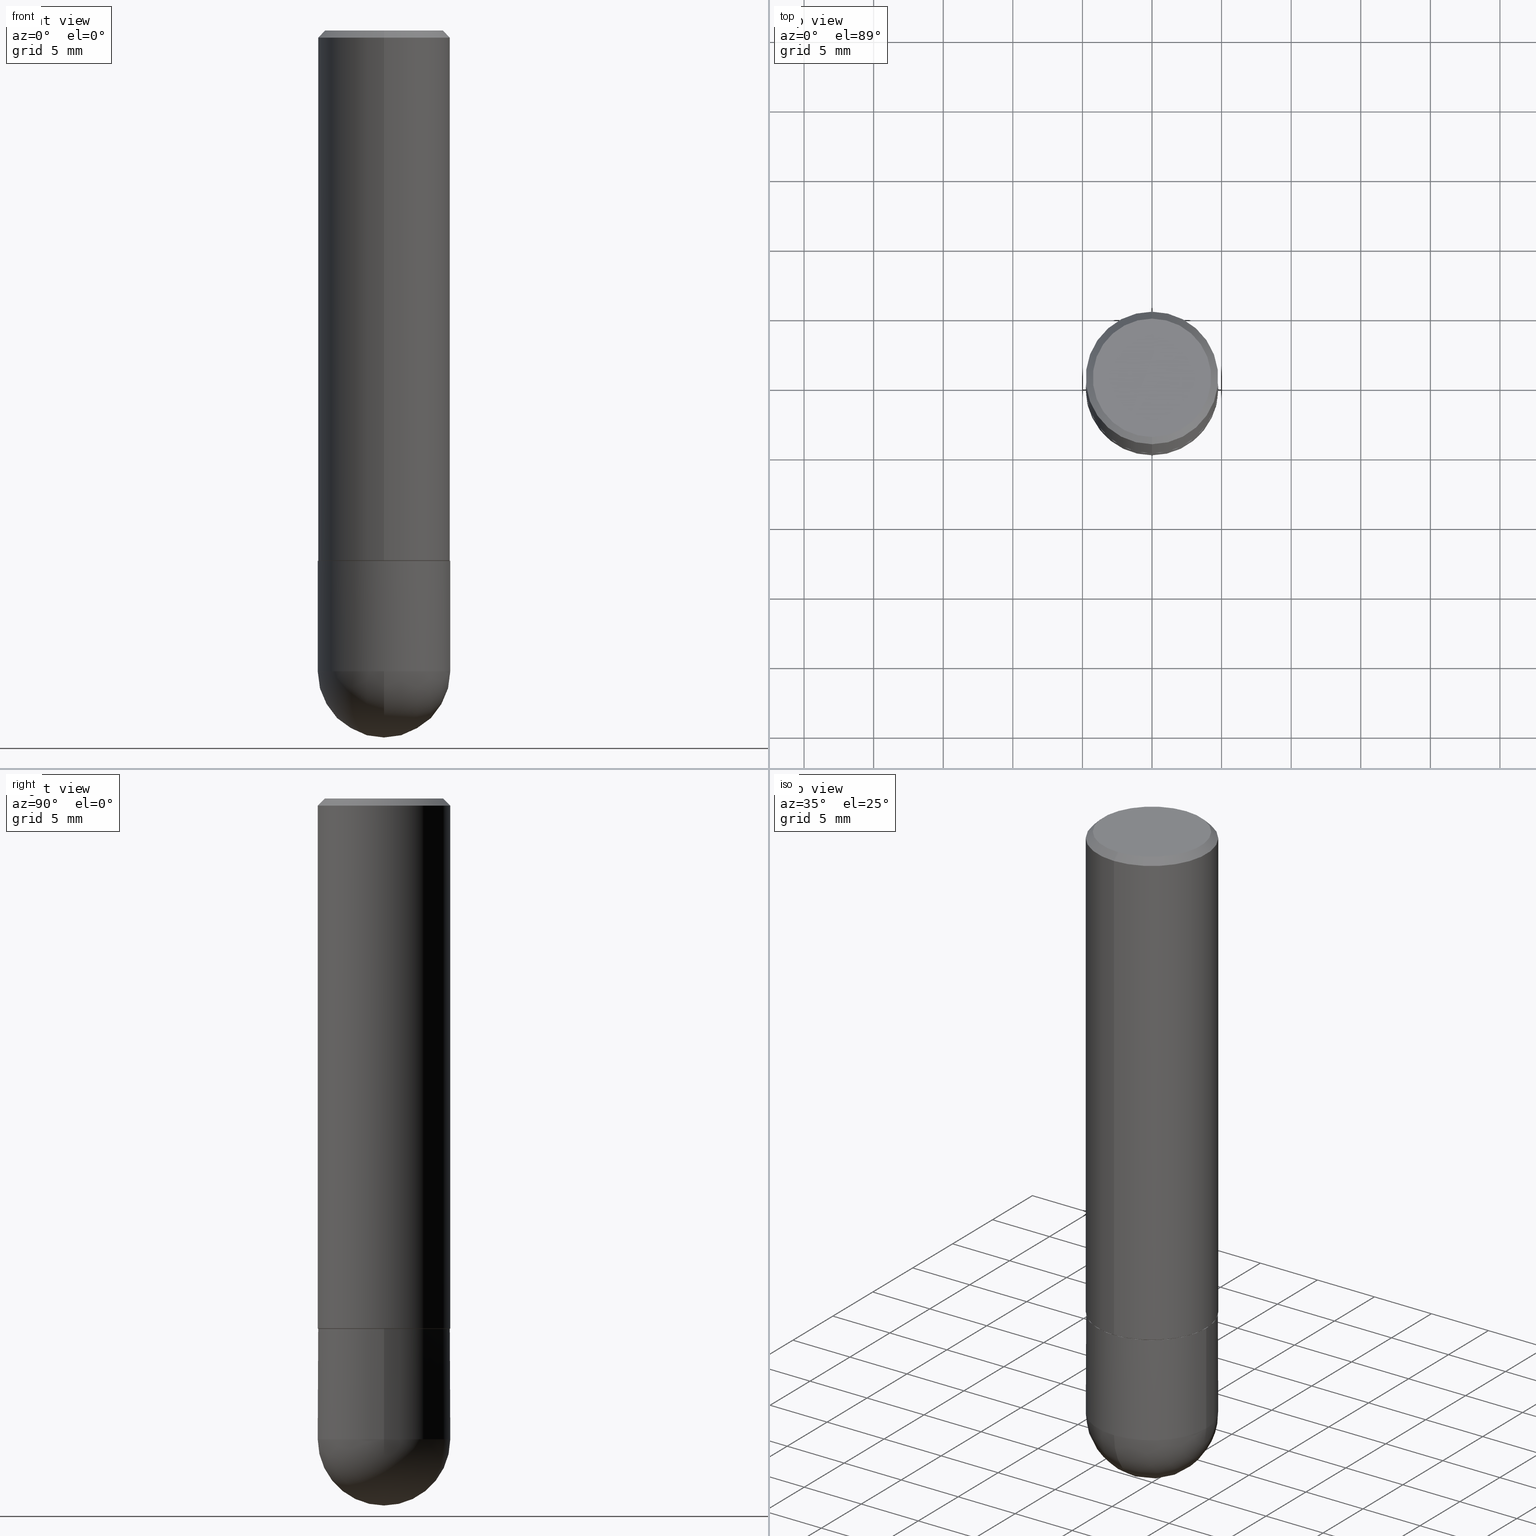
[diagram: canonical four-view strip — front | top / right | iso, engineering-drawing reading convention]
A machine part, canonical four-view strip (front | top / right | iso — engineering-drawing reading convention). The complete STEP part file that produces these views, byte-faithful:
ISO-10303-21;
HEADER;
FILE_DESCRIPTION (( 'STEP AP203' ),
    '1' );
FILE_NAME ('34975.STEP',
    '2024-02-21T18:36:08',
    ( '' ),
    ( '' ),
    'SwSTEP 2.0',
    'SolidWorks 2023',
    '' );
FILE_SCHEMA (( 'CONFIG_CONTROL_DESIGN' ));
ENDSEC;

DATA;
#1 = CARTESIAN_POINT ( 'NONE',  ( 3.666356659349451790E-29, -5.239866372861070262E-15, -1.499999999999999778 ) ) ;
#2 = MANIFOLD_SOLID_BREP ( 'Body-Move/Copy2[1]', #349 ) ;
#3 = APPROVAL_STATUS ( 'not_yet_approved' ) ;
#4 = AXIS2_PLACEMENT_3D ( 'NONE', #292, #264, #400 ) ;
#5 = ADVANCED_FACE ( 'NONE', ( #176 ), #185, .T. ) ;
#6 = COORDINATED_UNIVERSAL_TIME_OFFSET ( 5, 0, .BEHIND. ) ;
#7 = LINE ( 'NONE', #353, #118 ) ;
#8 = LINE ( 'NONE', #157, #295 ) ;
#9 = UNCERTAINTY_MEASURE_WITH_UNIT (LENGTH_MEASURE( 1.000000000000000082E-05 ), #74, 'distance_accuracy_value', 'NONE');
#10 = AXIS2_PLACEMENT_3D ( 'NONE', #207, #116, #376 ) ;
#11 = EDGE_CURVE ( 'NONE', #330, #111, #65, .T. ) ;
#12 = VERTEX_POINT ( 'NONE', #338 ) ;
#13 = EDGE_CURVE ( 'NONE', #411, #55, #158, .T. ) ;
#14 = PLANE ( 'NONE',  #303 ) ;
#15 = ORIENTED_EDGE ( 'NONE', *, *, #34, .T. ) ;
#16 = DIRECTION ( 'NONE',  ( 1.000000000000000000, -6.982962677686266711E-15, 4.876176775795935793E-29 ) ) ;
#17 = DIRECTION ( 'NONE',  ( -2.444237772899634714E-29, 3.493244248574047893E-15, 1.000000000000000000 ) ) ;
#18 = DIRECTION ( 'NONE',  ( 6.982962677686266711E-15, 1.000000000000000000, -3.483106191921935949E-15 ) ) ;
#19 = ADVANCED_FACE ( 'NONE', ( #301 ), #117, .T. ) ;
#20 = ORIENTED_EDGE ( 'NONE', *, *, #13, .F. ) ;
#21 = AXIS2_PLACEMENT_3D ( 'NONE', #63, #340, #275 ) ;
#22 = DIRECTION ( 'NONE',  ( -6.982962677686265922E-15, -1.000000000000000000, 3.493244248574047893E-15 ) ) ;
#23 = EDGE_LOOP ( 'NONE', ( #166, #234, #291, #27, #211 ) ) ;
#24 = APPROVAL_DATE_TIME ( #339, #231 ) ;
#25 = DIRECTION ( 'NONE',  ( -6.982962677686266711E-15, -1.000000000000000000, 3.493244248574047893E-15 ) ) ;
#26 = CYLINDRICAL_SURFACE ( 'NONE', #10, 0.1874999999999999722 ) ;
#27 = ORIENTED_EDGE ( 'NONE', *, *, #49, .F. ) ;
#28 = FACE_OUTER_BOUND ( 'NONE', #88, .T. ) ;
#29 = ADVANCED_FACE ( 'NONE', ( #78 ), #174, .T. ) ;
#30 = CARTESIAN_POINT ( 'NONE',  ( 4.432412211210560082E-29, -6.328309926653201295E-15, -1.812499999999999778 ) ) ;
#31 = LOCAL_TIME ( 13, 36, 8.000000000000000000, #306 ) ;
#32 = ORIENTED_EDGE ( 'NONE', *, *, #108, .F. ) ;
#33 = PERSON_AND_ORGANIZATION_ROLE ( 'design_owner' ) ;
#34 = EDGE_CURVE ( 'NONE', #236, #77, #199, .T. ) ;
#35 = VECTOR ( 'NONE', #142, 39.37007874015748143 ) ;
#36 = CC_DESIGN_PERSON_AND_ORGANIZATION_ASSIGNMENT ( #302, #33, ( #372 ) ) ;
#37 = CARTESIAN_POINT ( 'NONE',  ( 4.888475545799278045E-31, -6.986488497148108654E-17, -0.02000000000000003858 ) ) ;
#38 = AXIS2_PLACEMENT_3D ( 'NONE', #364, #369, #16 ) ;
#39 = APPROVAL_PERSON_ORGANIZATION ( #124, #289, #127 ) ;
#40 = LINE ( 'NONE', #356, #311 ) ;
#41 = EDGE_LOOP ( 'NONE', ( #297, #333, #328, #121, #20 ) ) ;
#42 = DIRECTION ( 'NONE',  ( -2.444237772899634714E-29, 3.493244248574047893E-15, 1.000000000000000000 ) ) ;
#43 = CARTESIAN_POINT ( 'NONE',  ( -1.286343374582161379E-15, -0.1875000000000000555, -0.01999999999999938632 ) ) ;
#44 = DIRECTION ( 'NONE',  ( -2.444237772899634714E-29, 3.493244248574047893E-15, 1.000000000000000000 ) ) ;
#45 = EDGE_LOOP ( 'NONE', ( #260, #106, #320, #393 ) ) ;
#46 = DIRECTION ( 'NONE',  ( 2.444237772899634714E-29, -3.493244248574047893E-15, -1.000000000000000000 ) ) ;
#47 = CIRCLE ( 'NONE', #89, 0.1875000000000001388 ) ;
#48 = CARTESIAN_POINT ( 'NONE',  ( 0.000000000000000000, 0.000000000000000000, 0.000000000000000000 ) ) ;
#49 = EDGE_CURVE ( 'NONE', #92, #55, #321, .T. ) ;
#50 = DIRECTION ( 'NONE',  ( 2.438088387897960049E-29, -3.491481338843145188E-15, -1.000000000000000000 ) ) ;
#51 = ADVANCED_BREP_SHAPE_REPRESENTATION ( '34975', ( #2, #133, #154 ), #160 ) ;
#52 = ORIENTED_EDGE ( 'NONE', *, *, #250, .T. ) ;
#53 = PERSON_AND_ORGANIZATION ( #287, #164 ) ;
#54 = DIRECTION ( 'NONE',  ( -6.982962677686265922E-15, -1.000000000000000000, 2.929595703661408456E-15 ) ) ;
#55 = VERTEX_POINT ( 'NONE', #261 ) ;
#56 = AXIS2_PLACEMENT_3D ( 'NONE', #186, #355, #188 ) ;
#57 = APPROVAL_PERSON_ORGANIZATION ( #402, #394, #380 ) ;
#58 = CARTESIAN_POINT ( 'NONE',  ( 3.668203209277704335E-29, -5.237222008264717388E-15, -1.499999999999999778 ) ) ;
#59 = PERSON_AND_ORGANIZATION ( #287, #164 ) ;
#60 = SPHERICAL_SURFACE ( 'NONE', #131, 0.1875000000000002776 ) ;
#61 = ORIENTED_EDGE ( 'NONE', *, *, #319, .T. ) ;
#62 = SPHERICAL_SURFACE ( 'NONE', #335, 0.1875000000000002776 ) ;
#63 = CARTESIAN_POINT ( 'NONE',  ( 3.663912421576552546E-29, -5.236373128612498345E-15, -1.499000000000000110 ) ) ;
#64 = ORIENTED_EDGE ( 'NONE', *, *, #71, .T. ) ;
#65 = CIRCLE ( 'NONE', #245, 0.1874999999999999722 ) ;
#66 = CIRCLE ( 'NONE', #229, 0.1875000000000002776 ) ;
#67 = DIRECTION ( 'NONE',  ( -6.982962677686265922E-15, -1.000000000000000000, 2.929595703661408456E-15 ) ) ;
#68 = CIRCLE ( 'NONE', #272, 0.1864999999999999991 ) ;
#69 = DIRECTION ( 'NONE',  ( -2.444237772899634994E-29, 3.493244248574047893E-15, 1.000000000000000000 ) ) ;
#70 = LOCAL_TIME ( 13, 36, 8.000000000000000000, #93 ) ;
#71 = EDGE_CURVE ( 'NONE', #255, #83, #202, .T. ) ;
#72 = DIRECTION ( 'NONE',  ( -2.444237772899634714E-29, 3.493244248574047893E-15, 1.000000000000000000 ) ) ;
#73 = CIRCLE ( 'NONE', #282, 0.1875000000000000278 ) ;
#74 =( CONVERSION_BASED_UNIT ( 'INCH', #390 ) LENGTH_UNIT ( ) NAMED_UNIT ( #150 ) );
#75 = FACE_OUTER_BOUND ( 'NONE', #345, .T. ) ;
#76 = CC_DESIGN_PERSON_AND_ORGANIZATION_ASSIGNMENT ( #279, #274, ( #378 ) ) ;
#77 = VERTEX_POINT ( 'NONE', #332 ) ;
#78 = FACE_OUTER_BOUND ( 'NONE', #41, .T. ) ;
#79 = ORIENTED_EDGE ( 'NONE', *, *, #371, .T. ) ;
#80 = LINE ( 'NONE', #43, #318 ) ;
#81 = CARTESIAN_POINT ( 'NONE',  ( 0.1874999999999999722, -7.092071469525134744E-15, -1.812499999999999778 ) ) ;
#82 = CIRCLE ( 'NONE', #103, 0.1874999999999999722 ) ;
#83 = VERTEX_POINT ( 'NONE', #167 ) ;
#84 = CARTESIAN_POINT ( 'NONE',  ( 4.432412211210560082E-29, -6.328309926653201295E-15, -1.812499999999999778 ) ) ;
#85 = DIRECTION ( 'NONE',  ( -2.444237772899634994E-29, 3.493244248574047893E-15, 1.000000000000000000 ) ) ;
#86 = ORIENTED_EDGE ( 'NONE', *, *, #284, .F. ) ;
#87 = EDGE_CURVE ( 'NONE', #255, #263, #143, .T. ) ;
#88 = EDGE_LOOP ( 'NONE', ( #341, #407, #79, #373 ) ) ;
#89 = AXIS2_PLACEMENT_3D ( 'NONE', #395, #228, #193 ) ;
#90 = ORIENTED_EDGE ( 'NONE', *, *, #87, .T. ) ;
#91 = CARTESIAN_POINT ( 'NONE',  ( 3.666356659349451790E-29, -5.239866372861070262E-15, -1.499999999999999778 ) ) ;
#92 = VERTEX_POINT ( 'NONE', #81 ) ;
#93 = COORDINATED_UNIVERSAL_TIME_OFFSET ( 5, 0, .BEHIND. ) ;
#94 = DATE_AND_TIME ( #308, #31 ) ;
#95 = AXIS2_PLACEMENT_3D ( 'NONE', #240, #17, #140 ) ;
#96 = PRODUCT_DEFINITION_FORMATION_WITH_SPECIFIED_SOURCE ( 'ANY', '', #372, .NOT_KNOWN. ) ;
#97 = DATE_AND_TIME ( #348, #70 ) ;
#98 = CARTESIAN_POINT ( 'NONE',  ( 1.332267629550207176E-15, 0.1874999999999949207, -1.499000000000000554 ) ) ;
#99 = DATE_AND_TIME ( #381, #265 ) ;
#100 = DIRECTION ( 'NONE',  ( -6.982962677686265922E-15, -1.000000000000000000, 2.929595703661408456E-15 ) ) ;
#101 = MECHANICAL_CONTEXT ( 'NONE', #217, 'mechanical' ) ;
#102 = AXIS2_PLACEMENT_3D ( 'NONE', #130, #72, #100 ) ;
#103 = AXIS2_PLACEMENT_3D ( 'NONE', #104, #254, #391 ) ;
#104 = CARTESIAN_POINT ( 'NONE',  ( 4.432412211210560082E-29, -6.328309926653201295E-15, -1.812499999999999778 ) ) ;
#105 = CARTESIAN_POINT ( 'NONE',  ( -1.332267629550146039E-15, -0.1875000000000066613, -1.812499999999999334 ) ) ;
#106 = ORIENTED_EDGE ( 'NONE', *, *, #362, .T. ) ;
#107 = CARTESIAN_POINT ( 'NONE',  ( 4.432412211210560082E-29, -6.328309926653201295E-15, -1.812499999999999778 ) ) ;
#108 = EDGE_CURVE ( 'NONE', #220, #12, #68, .T. ) ;
#109 = CARTESIAN_POINT ( 'NONE',  ( 4.888475545799278045E-31, -6.986488497148108654E-17, -0.02000000000000003858 ) ) ;
#110 = VECTOR ( 'NONE', #85, 39.37007874015748143 ) ;
#111 = VERTEX_POINT ( 'NONE', #105 ) ;
#112 = LOCAL_TIME ( 13, 36, 8.000000000000000000, #331 ) ;
#113 = CARTESIAN_POINT ( 'NONE',  ( -1.302322539388452115E-15, -0.1865000000000052449, -1.499999999999999334 ) ) ;
#114 = EDGE_LOOP ( 'NONE', ( #86, #137, #15, #253 ) ) ;
#115 = ORIENTED_EDGE ( 'NONE', *, *, #71, .F. ) ;
#116 = DIRECTION ( 'NONE',  ( -2.445468806185136597E-29, 3.491481338843145583E-15, 1.000000000000000000 ) ) ;
#117 = CYLINDRICAL_SURFACE ( 'NONE', #95, 0.1875000000000000555 ) ;
#118 = VECTOR ( 'NONE', #69, 39.37007874015748143 ) ;
#119 = DIRECTION ( 'NONE',  ( -4.937700262165390546E-15, -0.7071067811866658115, 0.7071067811864292230 ) ) ;
#120 = CC_DESIGN_SECURITY_CLASSIFICATION ( #257, ( #96 ) ) ;
#121 = ORIENTED_EDGE ( 'NONE', *, *, #49, .T. ) ;
#122 = FACE_OUTER_BOUND ( 'NONE', #184, .T. ) ;
#123 = ADVANCED_FACE ( 'NONE', ( #259 ), #296, .T. ) ;
#124 = PERSON_AND_ORGANIZATION ( #287, #164 ) ;
#125 = DIRECTION ( 'NONE',  ( -2.444237772899634153E-29, 3.493244248574047893E-15, 1.000000000000000000 ) ) ;
#126 = CIRCLE ( 'NONE', #56, 0.1875000000000002776 ) ;
#127 = APPROVAL_ROLE ( '' ) ;
#128 = DIRECTION ( 'NONE',  ( 1.000000000000000000, -6.982962677686266711E-15, 0.000000000000000000 ) ) ;
#129 = DIRECTION ( 'NONE',  ( -2.444237772899634714E-29, 3.493244248574047893E-15, 1.000000000000000000 ) ) ;
#130 = CARTESIAN_POINT ( 'NONE',  ( 3.666356659349451790E-29, -5.239866372861070262E-15, -1.499999999999999778 ) ) ;
#131 = AXIS2_PLACEMENT_3D ( 'NONE', #314, #191, #215 ) ;
#132 = EDGE_LOOP ( 'NONE', ( #144, #377, #152, #225 ) ) ;
#133 = MANIFOLD_SOLID_BREP ( 'Body-Move/Copy2[2]', #204 ) ;
#134 = VERTEX_POINT ( 'NONE', #397 ) ;
#135 = CARTESIAN_POINT ( 'NONE',  ( -1.309305502066175205E-15, -0.1875000000000000555, 6.549832966076341771E-16 ) ) ;
#136 = CC_DESIGN_APPROVAL ( #231, ( #96 ) ) ;
#137 = ORIENTED_EDGE ( 'NONE', *, *, #182, .T. ) ;
#138 = EDGE_CURVE ( 'NONE', #389, #330, #82, .T. ) ;
#139 = CARTESIAN_POINT ( 'NONE',  ( 3.666356659349451790E-29, -5.239866372861070262E-15, -1.499999999999999778 ) ) ;
#140 = DIRECTION ( 'NONE',  ( -6.982962677686265922E-15, -1.000000000000000000, 3.493244248574047893E-15 ) ) ;
#141 = ORIENTED_EDGE ( 'NONE', *, *, #34, .F. ) ;
#142 = DIRECTION ( 'NONE',  ( -2.445468806185136877E-29, 3.491481338843145188E-15, 1.000000000000000000 ) ) ;
#143 = CIRCLE ( 'NONE', #365, 0.1674999999999999545 ) ;
#144 = ORIENTED_EDGE ( 'NONE', *, *, #362, .F. ) ;
#145 = LOCAL_TIME ( 13, 36, 8.000000000000000000, #146 ) ;
#146 = COORDINATED_UNIVERSAL_TIME_OFFSET ( 5, 0, .BEHIND. ) ;
#147 = CARTESIAN_POINT ( 'NONE',  ( 4.888475545799278045E-31, -6.986488497148108654E-17, -0.02000000000000003858 ) ) ;
#148 = EDGE_CURVE ( 'NONE', #92, #389, #392, .T. ) ;
#149 = PERSON_AND_ORGANIZATION_ROLE ( 'design_supplier' ) ;
#150 = DIMENSIONAL_EXPONENTS ( 1.000000000000000000, 0.000000000000000000, 0.000000000000000000, 0.000000000000000000, 0.000000000000000000, 0.000000000000000000, 0.000000000000000000 ) ;
#151 = FACE_OUTER_BOUND ( 'NONE', #132, .T. ) ;
#152 = ORIENTED_EDGE ( 'NONE', *, *, #11, .F. ) ;
#153 = EDGE_LOOP ( 'NONE', ( #268, #305, #223, #115 ) ) ;
#154 = AXIS2_PLACEMENT_3D ( 'NONE', #162, #385, #412 ) ;
#155 = CC_DESIGN_PERSON_AND_ORGANIZATION_ASSIGNMENT ( #53, #173, ( #257 ) ) ;
#156 = CARTESIAN_POINT ( 'NONE',  ( 1.239475875289312499E-15, 0.1674999999999999545, -5.592120493156243082E-16 ) ) ;
#157 = CARTESIAN_POINT ( 'NONE',  ( -0.1874999999999999722, 1.332267629550187651E-15, -9.223003294227946589E-30 ) ) ;
#158 = CIRCLE ( 'NONE', #251, 0.1875000000000000278 ) ;
#159 = ADVANCED_FACE ( 'NONE', ( #75 ), #256, .T. ) ;
#160 =( GEOMETRIC_REPRESENTATION_CONTEXT ( 3 ) GLOBAL_UNCERTAINTY_ASSIGNED_CONTEXT ( ( #9 ) ) GLOBAL_UNIT_ASSIGNED_CONTEXT ( ( #74, #366, #351 ) ) REPRESENTATION_CONTEXT ( 'NONE', 'WORKASPACE' ) );
#161 = DIRECTION ( 'NONE',  ( -2.445468806185136877E-29, 3.491481338843145188E-15, 1.000000000000000000 ) ) ;
#162 = CARTESIAN_POINT ( 'NONE',  ( 0.000000000000000000, 0.000000000000000000, 0.000000000000000000 ) ) ;
#163 = CARTESIAN_POINT ( 'NONE',  ( 1.309305502066218396E-15, 0.1874999999999935607, -1.812500000000000444 ) ) ;
#164 = ORGANIZATION ( 'UNSPECIFIED', 'UNSPECIFIED', '' ) ;
#165 = DIRECTION ( 'NONE',  ( 5.024295867788919882E-15, 0.7071067811866706965, 0.7071067811864243380 ) ) ;
#166 = ORIENTED_EDGE ( 'NONE', *, *, #138, .T. ) ;
#167 = CARTESIAN_POINT ( 'NONE',  ( 1.309305502066175205E-15, 0.1874999999999999167, -0.02000000000000069084 ) ) ;
#168 = CIRCLE ( 'NONE', #408, 0.1874999999999999722 ) ;
#169 = CARTESIAN_POINT ( 'NONE',  ( 1.309305502066175205E-15, 0.1874999999999999167, -0.02000000000000069084 ) ) ;
#170 = DIRECTION ( 'NONE',  ( 1.000000000000000000, -6.982962677686263555E-15, 0.000000000000000000 ) ) ;
#171 = PLANE ( 'NONE',  #4 ) ;
#172 = ORIENTED_EDGE ( 'NONE', *, *, #13, .T. ) ;
#173 = PERSON_AND_ORGANIZATION_ROLE ( 'classification_officer' ) ;
#174 = CYLINDRICAL_SURFACE ( 'NONE', #38, 0.1874999999999999722 ) ;
#175 = AXIS2_PLACEMENT_3D ( 'NONE', #316, #42, #25 ) ;
#176 = FACE_OUTER_BOUND ( 'NONE', #153, .T. ) ;
#177 = DIRECTION ( 'NONE',  ( -2.445468806185136597E-29, 3.491481338843145583E-15, 1.000000000000000000 ) ) ;
#178 = PERSON_AND_ORGANIZATION_ROLE ( 'creator' ) ;
#179 = DIRECTION ( 'NONE',  ( 2.444237772899634714E-29, -3.493244248574047893E-15, -1.000000000000000000 ) ) ;
#180 = CARTESIAN_POINT ( 'NONE',  ( 4.101292433296673835E-29, -6.802492294793250802E-15, -1.812499999999999778 ) ) ;
#181 = SHAPE_DEFINITION_REPRESENTATION ( #406, #51 ) ;
#182 = EDGE_CURVE ( 'NONE', #273, #236, #47, .T. ) ;
#183 = APPLICATION_PROTOCOL_DEFINITION ( 'international standard', 'config_control_design', 1994, #217 ) ;
#184 = EDGE_LOOP ( 'NONE', ( #32, #363 ) ) ;
#185 = CONICAL_SURFACE ( 'NONE', #374, 0.1874999999999999722, 0.7853981633974473908 ) ;
#186 = CARTESIAN_POINT ( 'NONE',  ( 4.101292433296673835E-29, -6.802492294793250802E-15, -1.812499999999999778 ) ) ;
#187 = EDGE_CURVE ( 'NONE', #111, #92, #386, .T. ) ;
#188 = DIRECTION ( 'NONE',  ( -7.105427357601001070E-15, -1.000000000000000000, 0.000000000000000000 ) ) ;
#189 = CARTESIAN_POINT ( 'NONE',  ( -0.1875000000000000278, -4.450498337908771098E-15, -1.499999999999999778 ) ) ;
#190 = CIRCLE ( 'NONE', #198, 0.1874999999999999722 ) ;
#191 = DIRECTION ( 'NONE',  ( -1.000000000000000000, 6.982962677686266711E-15, -4.883557194083112340E-29 ) ) ;
#192 = DIRECTION ( 'NONE',  ( -4.851104656540959542E-15, -0.7071067811865493491, -0.7071067811865457964 ) ) ;
#193 = DIRECTION ( 'NONE',  ( -6.982962677686266711E-15, -1.000000000000000000, 2.913971193241878794E-15 ) ) ;
#194 = EDGE_CURVE ( 'NONE', #77, #83, #190, .T. ) ;
#195 = DIRECTION ( 'NONE',  ( -6.982962677686266711E-15, -1.000000000000000000, 3.493244248574047893E-15 ) ) ;
#196 = ORIENTED_EDGE ( 'NONE', *, *, #410, .T. ) ;
#197 = CARTESIAN_POINT ( 'NONE',  ( 3.666356659349451790E-29, -5.239866372861070262E-15, -1.499999999999999778 ) ) ;
#198 = AXIS2_PLACEMENT_3D ( 'NONE', #329, #44, #201 ) ;
#199 = LINE ( 'NONE', #135, #110 ) ;
#200 = EDGE_LOOP ( 'NONE', ( #90, #61 ) ) ;
#201 = DIRECTION ( 'NONE',  ( -6.982962677686266711E-15, -1.000000000000000000, 3.483106191921935949E-15 ) ) ;
#202 = LINE ( 'NONE', #169, #238 ) ;
#203 = EDGE_LOOP ( 'NONE', ( #266, #196, #299, #370 ) ) ;
#204 = CLOSED_SHELL ( 'NONE', ( #383, #123, #5, #159, #19, #357, #258, #214 ) ) ;
#205 = DIRECTION ( 'NONE',  ( 1.000000000000000000, -6.982962677686263555E-15, 0.000000000000000000 ) ) ;
#206 = CALENDAR_DATE ( 2024, 21, 2 ) ;
#207 = CARTESIAN_POINT ( 'NONE',  ( 0.000000000000000000, 0.000000000000000000, 0.000000000000000000 ) ) ;
#208 = ORIENTED_EDGE ( 'NONE', *, *, #387, .F. ) ;
#209 = DIRECTION ( 'NONE',  ( 1.000000000000000000, -6.982962677686265922E-15, 4.883557194083112340E-29 ) ) ;
#210 = ADVANCED_FACE ( 'NONE', ( #285 ), #14, .F. ) ;
#211 = ORIENTED_EDGE ( 'NONE', *, *, #148, .T. ) ;
#212 = AXIS2_PLACEMENT_3D ( 'NONE', #109, #46, #18 ) ;
#213 = CONICAL_SURFACE ( 'NONE', #239, 0.1864999999999999991, 0.7853981633976190313 ) ;
#214 = ADVANCED_FACE ( 'NONE', ( #290 ), #171, .F. ) ;
#215 = DIRECTION ( 'NONE',  ( 6.982962677686266711E-15, 1.000000000000000000, -2.913971193241876428E-15 ) ) ;
#216 = DIRECTION ( 'NONE',  ( 6.982962677686266711E-15, 1.000000000000000000, 0.000000000000000000 ) ) ;
#217 = APPLICATION_CONTEXT ( 'configuration controlled 3d designs of mechanical parts and assemblies' ) ;
#218 = CC_DESIGN_PERSON_AND_ORGANIZATION_ASSIGNMENT ( #326, #178, ( #96 ) ) ;
#219 = DIRECTION ( 'NONE',  ( -6.982962677686265922E-15, -1.000000000000000000, 2.929595703661408456E-15 ) ) ;
#220 = VERTEX_POINT ( 'NONE', #113 ) ;
#221 = ADVANCED_FACE ( 'NONE', ( #344 ), #26, .T. ) ;
#222 = DIRECTION ( 'NONE',  ( -2.445468806185136597E-29, 3.491481338843145583E-15, 1.000000000000000000 ) ) ;
#223 = ORIENTED_EDGE ( 'NONE', *, *, #194, .T. ) ;
#224 = DIRECTION ( 'NONE',  ( -2.444237772899634714E-29, 3.493244248574047893E-15, 1.000000000000000000 ) ) ;
#225 = ORIENTED_EDGE ( 'NONE', *, *, #138, .F. ) ;
#226 = DIRECTION ( 'NONE',  ( -1.000000000000000000, 6.982962677686265922E-15, -4.876176775795935793E-29 ) ) ;
#227 = CIRCLE ( 'NONE', #21, 0.1875000000000001388 ) ;
#228 = DIRECTION ( 'NONE',  ( -2.444237772899634714E-29, 3.493244248574047893E-15, 1.000000000000000000 ) ) ;
#229 = AXIS2_PLACEMENT_3D ( 'NONE', #237, #209, #216 ) ;
#230 = ORIENTED_EDGE ( 'NONE', *, *, #194, .F. ) ;
#231 = APPROVAL ( #399, 'UNSPECIFIED' ) ;
#232 = DIRECTION ( 'NONE',  ( -2.444237772899634714E-29, 3.493244248574047893E-15, 1.000000000000000000 ) ) ;
#233 = CARTESIAN_POINT ( 'NONE',  ( -0.1874999999999999722, -4.450498337908771887E-15, -1.812499999999999778 ) ) ;
#234 = ORIENTED_EDGE ( 'NONE', *, *, #280, .T. ) ;
#235 = CARTESIAN_POINT ( 'NONE',  ( -1.217738394604446442E-15, -0.1674999999999999545, 6.110247739566814046E-16 ) ) ;
#236 = VERTEX_POINT ( 'NONE', #403 ) ;
#237 = CARTESIAN_POINT ( 'NONE',  ( 4.101292433296673835E-29, -6.802492294793250802E-15, -1.812499999999999778 ) ) ;
#238 = VECTOR ( 'NONE', #323, 39.37007874015748143 ) ;
#239 = AXIS2_PLACEMENT_3D ( 'NONE', #91, #342, #219 ) ;
#240 = CARTESIAN_POINT ( 'NONE',  ( 0.000000000000000000, 0.000000000000000000, 0.000000000000000000 ) ) ;
#241 = FACE_OUTER_BOUND ( 'NONE', #203, .T. ) ;
#242 = DIRECTION ( 'NONE',  ( -2.445468806185136597E-29, 3.491481338843145583E-15, 1.000000000000000000 ) ) ;
#243 = APPROVAL_STATUS ( 'not_yet_approved' ) ;
#244 = DIRECTION ( 'NONE',  ( -6.982962677686265922E-15, -1.000000000000000000, 3.493244248574047893E-15 ) ) ;
#245 = AXIS2_PLACEMENT_3D ( 'NONE', #30, #242, #205 ) ;
#246 = CC_DESIGN_APPROVAL ( #289, ( #378 ) ) ;
#247 = DIRECTION ( 'NONE',  ( 6.982962677686266711E-15, 1.000000000000000000, -2.913971193241876428E-15 ) ) ;
#248 = DIRECTION ( 'NONE',  ( -6.982962677686266711E-15, -1.000000000000000000, 3.483106191921935949E-15 ) ) ;
#249 = LINE ( 'NONE', #315, #252 ) ;
#250 = EDGE_CURVE ( 'NONE', #236, #273, #227, .T. ) ;
#251 = AXIS2_PLACEMENT_3D ( 'NONE', #58, #177, #271 ) ;
#252 = VECTOR ( 'NONE', #119, 39.37007874015748143 ) ;
#253 = ORIENTED_EDGE ( 'NONE', *, *, #298, .F. ) ;
#254 = DIRECTION ( 'NONE',  ( -2.445468806185136597E-29, 3.491481338843145583E-15, 1.000000000000000000 ) ) ;
#255 = VERTEX_POINT ( 'NONE', #156 ) ;
#256 = CONICAL_SURFACE ( 'NONE', #212, 0.1874999999999999722, 0.7853981633974473908 ) ;
#257 = SECURITY_CLASSIFICATION ( '', '', #405 ) ;
#258 = ADVANCED_FACE ( 'NONE', ( #122 ), #276, .F. ) ;
#259 = FACE_OUTER_BOUND ( 'NONE', #368, .T. ) ;
#260 = ORIENTED_EDGE ( 'NONE', *, *, #312, .F. ) ;
#261 = CARTESIAN_POINT ( 'NONE',  ( 0.1875000000000000278, -6.546527510330893185E-15, -1.499999999999999778 ) ) ;
#262 = PRODUCT_RELATED_PRODUCT_CATEGORY ( 'detail', '', ( #372 ) ) ;
#263 = VERTEX_POINT ( 'NONE', #235 ) ;
#264 = DIRECTION ( 'NONE',  ( 2.444237772899634153E-29, -3.493244248574047893E-15, -1.000000000000000000 ) ) ;
#265 = LOCAL_TIME ( 13, 36, 8.000000000000000000, #6 ) ;
#266 = ORIENTED_EDGE ( 'NONE', *, *, #108, .T. ) ;
#267 = DATE_AND_TIME ( #294, #145 ) ;
#268 = ORIENTED_EDGE ( 'NONE', *, *, #319, .F. ) ;
#269 = FACE_OUTER_BOUND ( 'NONE', #45, .T. ) ;
#270 = ADVANCED_FACE ( 'NONE', ( #151 ), #60, .T. ) ;
#271 = DIRECTION ( 'NONE',  ( 1.000000000000000000, -6.982962677686266711E-15, 0.000000000000000000 ) ) ;
#272 = AXIS2_PLACEMENT_3D ( 'NONE', #139, #327, #54 ) ;
#273 = VERTEX_POINT ( 'NONE', #98 ) ;
#274 = PERSON_AND_ORGANIZATION_ROLE ( 'creator' ) ;
#275 = DIRECTION ( 'NONE',  ( -6.982962677686266711E-15, -1.000000000000000000, 2.913971193241878794E-15 ) ) ;
#276 = PLANE ( 'NONE',  #310 ) ;
#277 = EDGE_CURVE ( 'NONE', #55, #411, #73, .T. ) ;
#278 = AXIS2_PLACEMENT_3D ( 'NONE', #197, #346, #67 ) ;
#279 = PERSON_AND_ORGANIZATION ( #287, #164 ) ;
#280 = EDGE_CURVE ( 'NONE', #330, #411, #8, .T. ) ;
#281 = PERSON_AND_ORGANIZATION ( #287, #164 ) ;
#282 = AXIS2_PLACEMENT_3D ( 'NONE', #388, #309, #128 ) ;
#283 =( LENGTH_UNIT ( ) NAMED_UNIT ( * ) SI_UNIT ( $, .METRE. ) );
#284 = EDGE_CURVE ( 'NONE', #273, #83, #7, .T. ) ;
#285 = FACE_OUTER_BOUND ( 'NONE', #375, .T. ) ;
#286 = AXIS2_PLACEMENT_3D ( 'NONE', #107, #367, #170 ) ;
#287 = PERSON ( 'UNSPECIFIED', 'UNSPECIFIED', 'UNSPECIFIED', ('UNSPECIFIED'), ('UNSPECIFIED'), ('UNSPECIFIED') ) ;
#288 = CARTESIAN_POINT ( 'NONE',  ( 1.309305502066211690E-15, 0.1874999999999947820, -1.500000000000000444 ) ) ;
#289 = APPROVAL ( #243, 'UNSPECIFIED' ) ;
#290 = FACE_OUTER_BOUND ( 'NONE', #200, .T. ) ;
#291 = ORIENTED_EDGE ( 'NONE', *, *, #277, .F. ) ;
#292 = CARTESIAN_POINT ( 'NONE',  ( 1.169646248512449398E-15, 0.1674999999999999545, -5.721652304758885823E-16 ) ) ;
#293 = ORIENTED_EDGE ( 'NONE', *, *, #284, .T. ) ;
#294 = CALENDAR_DATE ( 2024, 21, 2 ) ;
#295 = VECTOR ( 'NONE', #161, 39.37007874015748143 ) ;
#296 = CYLINDRICAL_SURFACE ( 'NONE', #317, 0.1875000000000000555 ) ;
#297 = ORIENTED_EDGE ( 'NONE', *, *, #280, .F. ) ;
#298 = EDGE_CURVE ( 'NONE', #83, #77, #168, .T. ) ;
#299 = ORIENTED_EDGE ( 'NONE', *, *, #250, .F. ) ;
#300 = DATE_TIME_ROLE ( 'classification_date' ) ;
#301 = FACE_OUTER_BOUND ( 'NONE', #114, .T. ) ;
#302 = PERSON_AND_ORGANIZATION ( #287, #164 ) ;
#303 = AXIS2_PLACEMENT_3D ( 'NONE', #288, #50, #226 ) ;
#304 = CC_DESIGN_APPROVAL ( #394, ( #257 ) ) ;
#305 = ORIENTED_EDGE ( 'NONE', *, *, #387, .T. ) ;
#306 = COORDINATED_UNIVERSAL_TIME_OFFSET ( 5, 0, .BEHIND. ) ;
#307 = CC_DESIGN_PERSON_AND_ORGANIZATION_ASSIGNMENT ( #59, #149, ( #96 ) ) ;
#308 = CALENDAR_DATE ( 2024, 21, 2 ) ;
#309 = DIRECTION ( 'NONE',  ( -2.445468806185136597E-29, 3.491481338843145583E-15, 1.000000000000000000 ) ) ;
#310 = AXIS2_PLACEMENT_3D ( 'NONE', #1, #125, #244 ) ;
#311 = VECTOR ( 'NONE', #165, 39.37007874015748143 ) ;
#312 = EDGE_CURVE ( 'NONE', #134, #111, #126, .T. ) ;
#313 = APPROVAL_DATE_TIME ( #99, #289 ) ;
#314 = CARTESIAN_POINT ( 'NONE',  ( 4.101292433296673835E-29, -6.802492294793250802E-15, -1.812499999999999778 ) ) ;
#315 = CARTESIAN_POINT ( 'NONE',  ( -1.302322539388452115E-15, -0.1865000000000052449, -1.499999999999999334 ) ) ;
#316 = CARTESIAN_POINT ( 'NONE',  ( -6.332130934225978108E-46, 9.049725117766187729E-32, 2.590636232052857901E-17 ) ) ;
#317 = AXIS2_PLACEMENT_3D ( 'NONE', #48, #224, #22 ) ;
#318 = VECTOR ( 'NONE', #192, 39.37007874015748143 ) ;
#319 = EDGE_CURVE ( 'NONE', #263, #255, #358, .T. ) ;
#320 = ORIENTED_EDGE ( 'NONE', *, *, #148, .F. ) ;
#321 = LINE ( 'NONE', #361, #35 ) ;
#322 = DIRECTION ( 'NONE',  ( -1.000000000000000000, 6.982962677686266711E-15, -4.883557194083112340E-29 ) ) ;
#323 = DIRECTION ( 'NONE',  ( 4.937700262164543309E-15, 0.7071067811865444641, -0.7071067811865506814 ) ) ;
#324 = AXIS2_PLACEMENT_3D ( 'NONE', #84, #222, #396 ) ;
#325 = EDGE_CURVE ( 'NONE', #12, #220, #354, .T. ) ;
#326 = PERSON_AND_ORGANIZATION ( #287, #164 ) ;
#327 = DIRECTION ( 'NONE',  ( -2.444237772899634714E-29, 3.493244248574047893E-15, 1.000000000000000000 ) ) ;
#328 = ORIENTED_EDGE ( 'NONE', *, *, #187, .T. ) ;
#329 = CARTESIAN_POINT ( 'NONE',  ( 4.888475545799278045E-31, -6.986488497148108654E-17, -0.02000000000000003858 ) ) ;
#330 = VERTEX_POINT ( 'NONE', #233 ) ;
#331 = COORDINATED_UNIVERSAL_TIME_OFFSET ( 5, 0, .BEHIND. ) ;
#332 = CARTESIAN_POINT ( 'NONE',  ( -1.286343374582161379E-15, -0.1875000000000000555, -0.01999999999999938632 ) ) ;
#333 = ORIENTED_EDGE ( 'NONE', *, *, #11, .T. ) ;
#334 = APPROVAL_ROLE ( '' ) ;
#335 = AXIS2_PLACEMENT_3D ( 'NONE', #180, #322, #247 ) ;
#336 = DESIGN_CONTEXT ( 'detailed design', #379, 'design' ) ;
#337 = CC_DESIGN_DATE_AND_TIME_ASSIGNMENT ( #267, #300, ( #257 ) ) ;
#338 = CARTESIAN_POINT ( 'NONE',  ( 1.328714915871424421E-15, 0.1864999999999947811, -1.500000000000000444 ) ) ;
#339 = DATE_AND_TIME ( #206, #112 ) ;
#340 = DIRECTION ( 'NONE',  ( -2.444237772899634714E-29, 3.493244248574047893E-15, 1.000000000000000000 ) ) ;
#341 = ORIENTED_EDGE ( 'NONE', *, *, #410, .F. ) ;
#342 = DIRECTION ( 'NONE',  ( -2.444237772899634714E-29, 3.493244248574047893E-15, 1.000000000000000000 ) ) ;
#343 = APPROVAL_DATE_TIME ( #94, #394 ) ;
#344 = FACE_OUTER_BOUND ( 'NONE', #23, .T. ) ;
#345 = EDGE_LOOP ( 'NONE', ( #208, #359, #64, #401 ) ) ;
#346 = DIRECTION ( 'NONE',  ( -2.444237772899634714E-29, 3.493244248574047893E-15, 1.000000000000000000 ) ) ;
#347 = ADVANCED_FACE ( 'NONE', ( #269 ), #62, .T. ) ;
#348 = CALENDAR_DATE ( 2024, 21, 2 ) ;
#349 = CLOSED_SHELL ( 'NONE', ( #221, #270, #347, #210, #29 ) ) ;
#350 = DATE_TIME_ROLE ( 'creation_date' ) ;
#351 =( NAMED_UNIT ( * ) SI_UNIT ( $, .STERADIAN. ) SOLID_ANGLE_UNIT ( ) );
#352 = CC_DESIGN_DATE_AND_TIME_ASSIGNMENT ( #97, #350, ( #378 ) ) ;
#353 = CARTESIAN_POINT ( 'NONE',  ( 1.332267629550188046E-15, 0.1875000000000000555, -6.549832966076341771E-16 ) ) ;
#354 = CIRCLE ( 'NONE', #278, 0.1864999999999999991 ) ;
#355 = DIRECTION ( 'NONE',  ( -1.000000000000000000, 7.105427357601001070E-15, -4.926315508542082329E-29 ) ) ;
#356 = CARTESIAN_POINT ( 'NONE',  ( 1.325162202192623325E-15, 0.1864999999999947811, -1.500000000000000444 ) ) ;
#357 = ADVANCED_FACE ( 'NONE', ( #28 ), #382, .T. ) ;
#358 = CIRCLE ( 'NONE', #175, 0.1674999999999999545 ) ;
#359 = ORIENTED_EDGE ( 'NONE', *, *, #87, .F. ) ;
#360 = CARTESIAN_POINT ( 'NONE',  ( -6.332130934225978108E-46, 9.049725117766187729E-32, 2.590636232052857901E-17 ) ) ;
#361 = CARTESIAN_POINT ( 'NONE',  ( 0.1874999999999999722, -1.309305502066174811E-15, 9.142831454617378210E-30 ) ) ;
#362 = EDGE_CURVE ( 'NONE', #134, #389, #66, .T. ) ;
#363 = ORIENTED_EDGE ( 'NONE', *, *, #325, .F. ) ;
#364 = CARTESIAN_POINT ( 'NONE',  ( 0.000000000000000000, 0.000000000000000000, 0.000000000000000000 ) ) ;
#365 = AXIS2_PLACEMENT_3D ( 'NONE', #360, #232, #195 ) ;
#366 =( NAMED_UNIT ( * ) PLANE_ANGLE_UNIT ( ) SI_UNIT ( $, .RADIAN. ) );
#367 = DIRECTION ( 'NONE',  ( -2.445468806185136597E-29, 3.491481338843145583E-15, 1.000000000000000000 ) ) ;
#368 = EDGE_LOOP ( 'NONE', ( #52, #293, #230, #141 ) ) ;
#369 = DIRECTION ( 'NONE',  ( -2.445468806185136597E-29, 3.491481338843145583E-15, 1.000000000000000000 ) ) ;
#370 = ORIENTED_EDGE ( 'NONE', *, *, #371, .F. ) ;
#371 = EDGE_CURVE ( 'NONE', #220, #236, #249, .T. ) ;
#372 = PRODUCT ( '34975', '34975', '', ( #101 ) ) ;
#373 = ORIENTED_EDGE ( 'NONE', *, *, #182, .F. ) ;
#374 = AXIS2_PLACEMENT_3D ( 'NONE', #147, #179, #404 ) ;
#375 = EDGE_LOOP ( 'NONE', ( #398, #172 ) ) ;
#376 = DIRECTION ( 'NONE',  ( 1.000000000000000000, -6.982962677686266711E-15, 4.876176775795935793E-29 ) ) ;
#377 = ORIENTED_EDGE ( 'NONE', *, *, #312, .T. ) ;
#378 = PRODUCT_DEFINITION ( 'UNKNOWN', '', #96, #336 ) ;
#379 = APPLICATION_CONTEXT ( 'configuration controlled 3d designs of mechanical parts and assemblies' ) ;
#380 = APPROVAL_ROLE ( '' ) ;
#381 = CALENDAR_DATE ( 2024, 21, 2 ) ;
#382 = CONICAL_SURFACE ( 'NONE', #102, 0.1864999999999999991, 0.7853981633976190313 ) ;
#383 = ADVANCED_FACE ( 'NONE', ( #241 ), #213, .T. ) ;
#384 = APPLICATION_PROTOCOL_DEFINITION ( 'international standard', 'config_control_design', 1994, #379 ) ;
#385 = DIRECTION ( 'NONE',  ( 0.000000000000000000, 0.000000000000000000, 1.000000000000000000 ) ) ;
#386 = CIRCLE ( 'NONE', #286, 0.1874999999999999722 ) ;
#387 = EDGE_CURVE ( 'NONE', #263, #77, #80, .T. ) ;
#388 = CARTESIAN_POINT ( 'NONE',  ( 3.668203209277704335E-29, -5.237222008264717388E-15, -1.499999999999999778 ) ) ;
#389 = VERTEX_POINT ( 'NONE', #163 ) ;
#390 = LENGTH_MEASURE_WITH_UNIT ( LENGTH_MEASURE( 0.02539999999999999897 ), #283 );
#391 = DIRECTION ( 'NONE',  ( 1.000000000000000000, -6.982962677686263555E-15, 0.000000000000000000 ) ) ;
#392 = CIRCLE ( 'NONE', #324, 0.1874999999999999722 ) ;
#393 = ORIENTED_EDGE ( 'NONE', *, *, #187, .F. ) ;
#394 = APPROVAL ( #3, 'UNSPECIFIED' ) ;
#395 = CARTESIAN_POINT ( 'NONE',  ( 3.663912421576552546E-29, -5.236373128612498345E-15, -1.499000000000000110 ) ) ;
#396 = DIRECTION ( 'NONE',  ( 1.000000000000000000, -6.982962677686263555E-15, 0.000000000000000000 ) ) ;
#397 = CARTESIAN_POINT ( 'NONE',  ( 4.567835018417444905E-29, -7.445663982084336619E-15, -2.000000000000000444 ) ) ;
#398 = ORIENTED_EDGE ( 'NONE', *, *, #277, .T. ) ;
#399 = APPROVAL_STATUS ( 'not_yet_approved' ) ;
#400 = DIRECTION ( 'NONE',  ( 6.982962677686265922E-15, 1.000000000000000000, -3.493244248574047893E-15 ) ) ;
#401 = ORIENTED_EDGE ( 'NONE', *, *, #298, .T. ) ;
#402 = PERSON_AND_ORGANIZATION ( #287, #164 ) ;
#403 = CARTESIAN_POINT ( 'NONE',  ( -1.309305502066139312E-15, -0.1875000000000053846, -1.498999999999999444 ) ) ;
#404 = DIRECTION ( 'NONE',  ( 6.982962677686266711E-15, 1.000000000000000000, -3.483106191921935949E-15 ) ) ;
#405 = SECURITY_CLASSIFICATION_LEVEL ( 'unclassified' ) ;
#406 = PRODUCT_DEFINITION_SHAPE ( 'NONE', 'NONE',  #378 ) ;
#407 = ORIENTED_EDGE ( 'NONE', *, *, #325, .T. ) ;
#408 = AXIS2_PLACEMENT_3D ( 'NONE', #37, #129, #248 ) ;
#409 = APPROVAL_PERSON_ORGANIZATION ( #281, #231, #334 ) ;
#410 = EDGE_CURVE ( 'NONE', #12, #273, #40, .T. ) ;
#411 = VERTEX_POINT ( 'NONE', #189 ) ;
#412 = DIRECTION ( 'NONE',  ( 1.000000000000000000, 0.000000000000000000, 0.000000000000000000 ) ) ;
ENDSEC;
END-ISO-10303-21;
